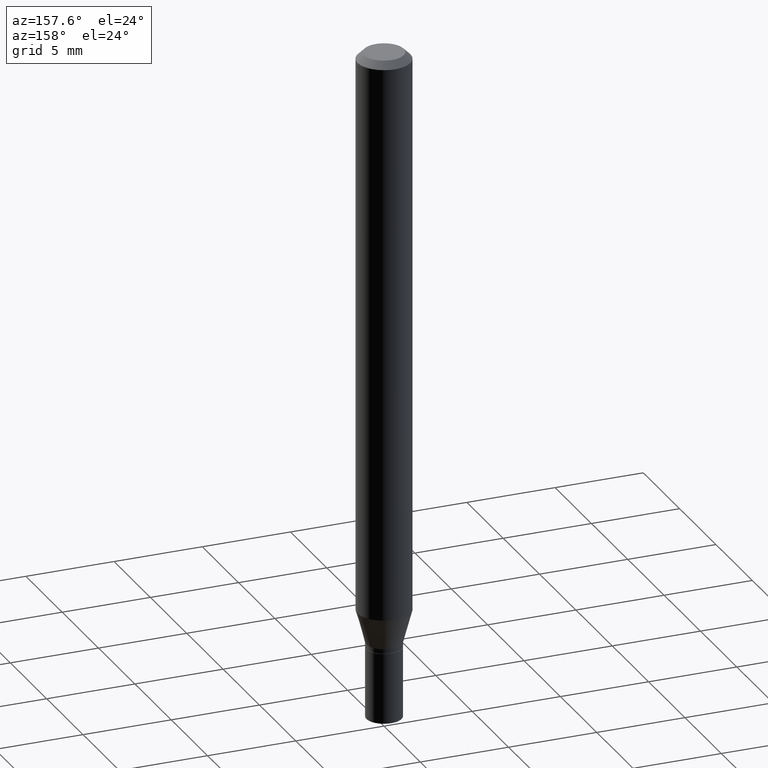
[diagram: clean part render]
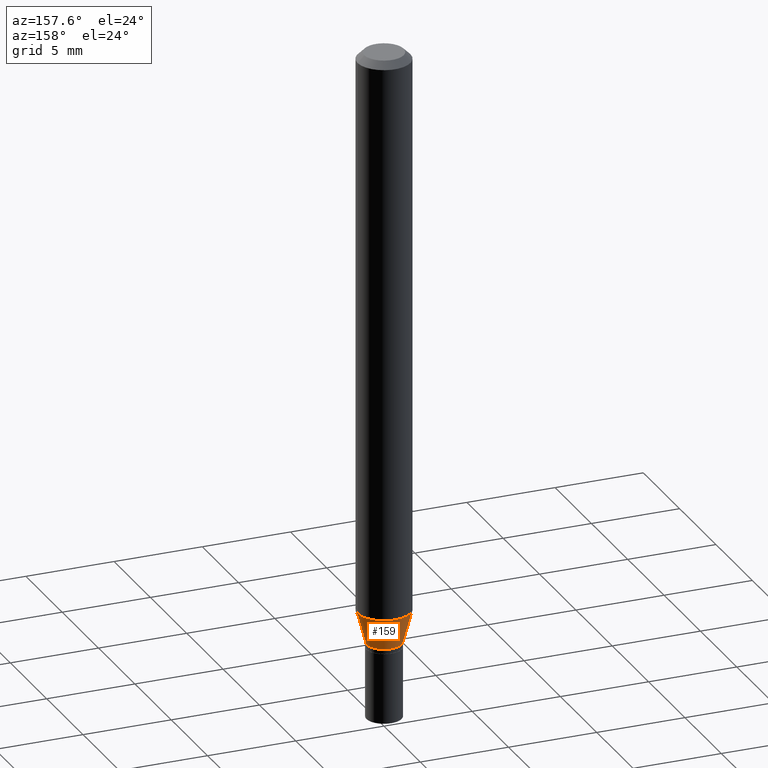
[diagram: same view with one face highlighted and labeled with its STEP entity id]
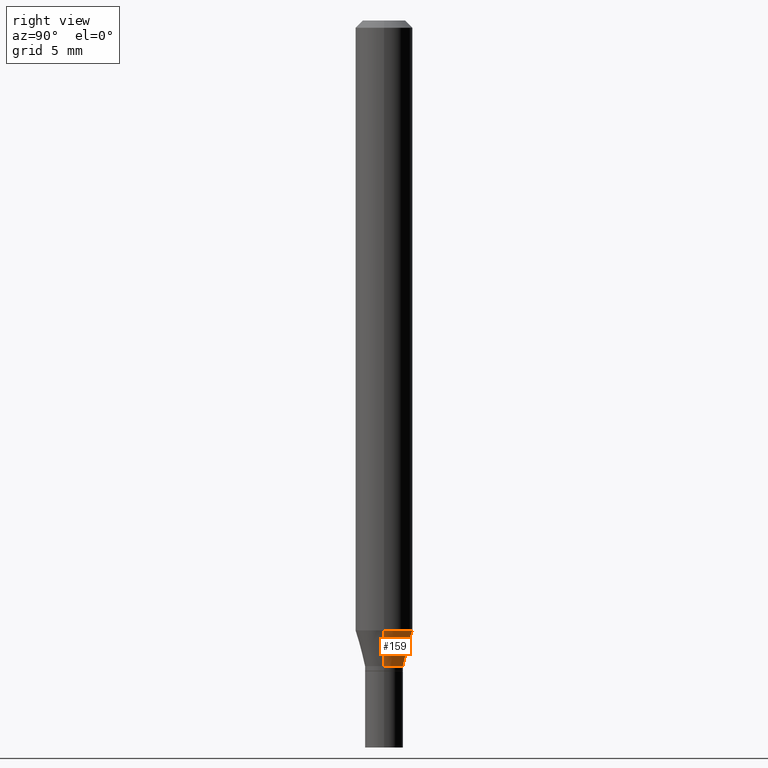
[diagram: same view with one face highlighted and labeled with its STEP entity id]
A machine part, auxiliary view. The second image highlights one B-rep face of the part: STEP entity #159.
A second angle (right view) of the same face is appended — the face is thin or edge-on in the first view.
In plain terms, the highlighted conical surface has half-angle 15 deg.
Its self-contained STEP definition (entity closure, byte-faithful):
#6 = DIRECTION ( 'NONE',  ( 1.000000000000000000, -6.982962677686256455E-15, 0.000000000000000000 ) ) ;
#9 = CARTESIAN_POINT ( 'NONE',  ( 3.257364449838602072E-29, -4.650653143339069312E-15, -1.331999999999999851 ) ) ;
#11 = EDGE_CURVE ( 'NONE', #166, #392, #422, .T. ) ;
#35 = EDGE_CURVE ( 'NONE', #392, #123, #315, .T. ) ;
#62 = CIRCLE ( 'NONE', #218, 0.03934999999999993364 ) ;
#76 = VECTOR ( 'NONE', #98, 39.37007874015748143 ) ;
#91 = VERTEX_POINT ( 'NONE', #213 ) ;
#98 = DIRECTION ( 'NONE',  ( 0.2588190451025215721, 1.565188264969619995E-15, 0.9659258262890679791 ) ) ;
#100 = ORIENTED_EDGE ( 'NONE', *, *, #319, .T. ) ;
#104 = AXIS2_PLACEMENT_3D ( 'NONE', #138, #244, #238 ) ;
#116 = CARTESIAN_POINT ( 'NONE',  ( 0.05904999999999999832, -4.806298490176690937E-15, -1.258478599090893102 ) ) ;
#123 = VERTEX_POINT ( 'NONE', #177 ) ;
#138 = CARTESIAN_POINT ( 'NONE',  ( 3.077570157328349519E-29, -4.393954544059317594E-15, -1.258478599090893102 ) ) ;
#144 = ORIENTED_EDGE ( 'NONE', *, *, #11, .F. ) ;
#154 = DIRECTION ( 'NONE',  ( -2.445468806185136597E-29, 3.491481338843145583E-15, 1.000000000000000000 ) ) ;
#159 = ADVANCED_FACE ( 'NONE', ( #295 ), #187, .T. ) ;
#166 = VERTEX_POINT ( 'NONE', #327 ) ;
#177 = CARTESIAN_POINT ( 'NONE',  ( -0.05904999999999999832, -3.974379058592978101E-15, -1.258478599090893102 ) ) ;
#187 = CONICAL_SURFACE ( 'NONE', #459, 0.03934999999999993364, 0.2617993877991502960 ) ;
#191 = ORIENTED_EDGE ( 'NONE', *, *, #401, .T. ) ;
#213 = CARTESIAN_POINT ( 'NONE',  ( -0.03934999999999993364, -4.172716817705224403E-15, -1.331999999999999851 ) ) ;
#218 = AXIS2_PLACEMENT_3D ( 'NONE', #261, #154, #407 ) ;
#232 = ORIENTED_EDGE ( 'NONE', *, *, #35, .F. ) ;
#238 = DIRECTION ( 'NONE',  ( 1.000000000000000000, -6.982962677686273021E-15, 0.000000000000000000 ) ) ;
#244 = DIRECTION ( 'NONE',  ( -2.445468806185136597E-29, 3.491481338843145583E-15, 1.000000000000000000 ) ) ;
#256 = VECTOR ( 'NONE', #302, 39.37007874015748143 ) ;
#261 = CARTESIAN_POINT ( 'NONE',  ( 3.257364449838602072E-29, -4.650653143339069312E-15, -1.331999999999999851 ) ) ;
#295 = FACE_OUTER_BOUND ( 'NONE', #419, .T. ) ;
#302 = DIRECTION ( 'NONE',  ( -0.2588190451025215721, 5.211531920934551831E-15, 0.9659258262890679791 ) ) ;
#315 = CIRCLE ( 'NONE', #104, 0.05904999999999999832 ) ;
#319 = EDGE_CURVE ( 'NONE', #91, #123, #371, .T. ) ;
#327 = CARTESIAN_POINT ( 'NONE',  ( 0.03934999999999993364, -4.925432724706023440E-15, -1.331999999999999851 ) ) ;
#346 = CARTESIAN_POINT ( 'NONE',  ( 0.03934999999999993364, -4.925432724706023440E-15, -1.331999999999999851 ) ) ;
#371 = LINE ( 'NONE', #413, #256 ) ;
#392 = VERTEX_POINT ( 'NONE', #116 ) ;
#401 = EDGE_CURVE ( 'NONE', #166, #91, #62, .T. ) ;
#407 = DIRECTION ( 'NONE',  ( 1.000000000000000000, -6.982962677686256455E-15, 0.000000000000000000 ) ) ;
#413 = CARTESIAN_POINT ( 'NONE',  ( -0.03934999999999993364, -4.371054576817470705E-15, -1.331999999999999851 ) ) ;
#419 = EDGE_LOOP ( 'NONE', ( #191, #100, #232, #144 ) ) ;
#422 = LINE ( 'NONE', #346, #76 ) ;
#440 = DIRECTION ( 'NONE',  ( -2.445468806185136597E-29, 3.491481338843145583E-15, 1.000000000000000000 ) ) ;
#459 = AXIS2_PLACEMENT_3D ( 'NONE', #9, #440, #6 ) ;